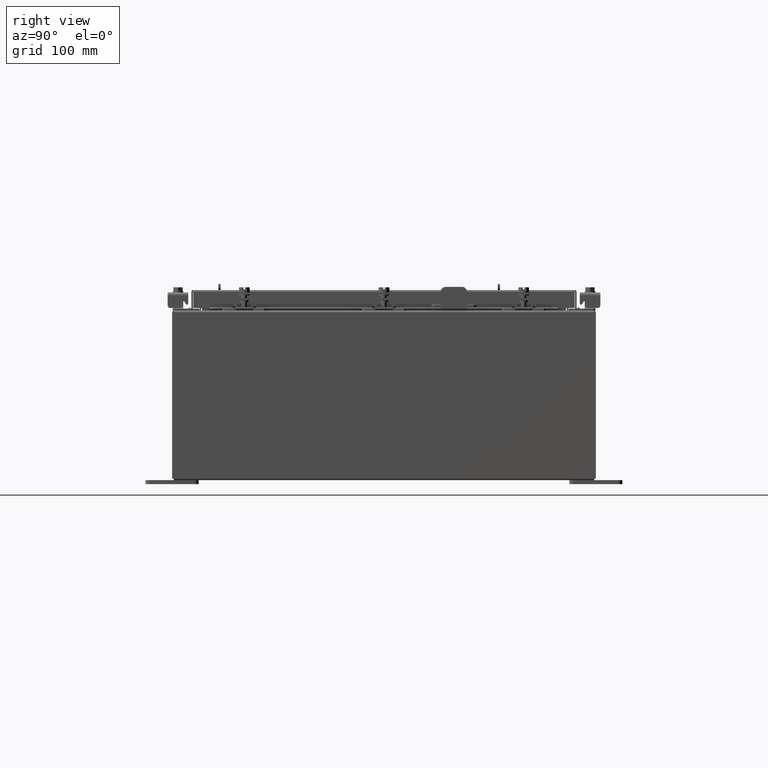
[diagram: clean part render]
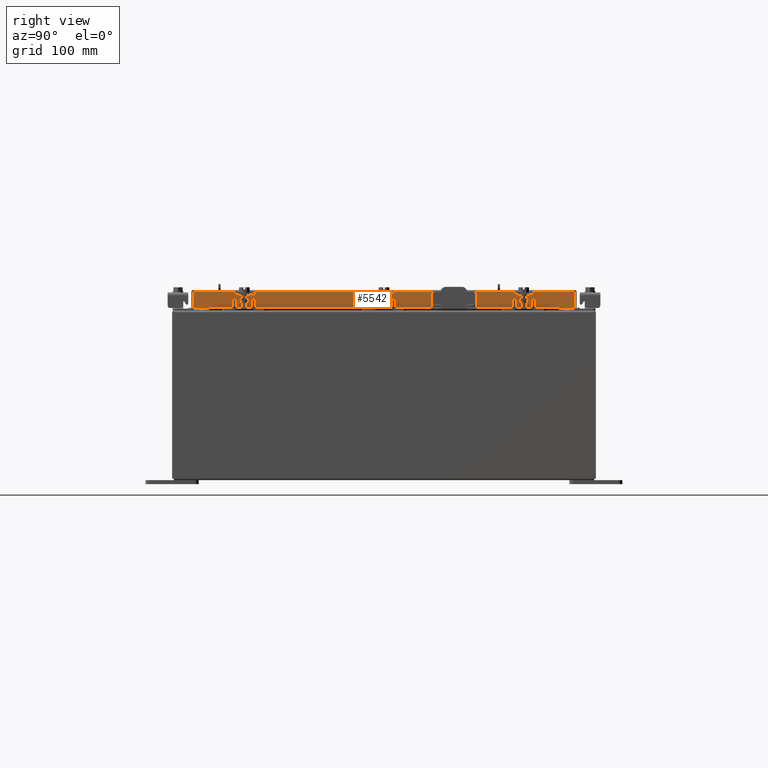
[diagram: same view with one face highlighted and labeled with its STEP entity id]
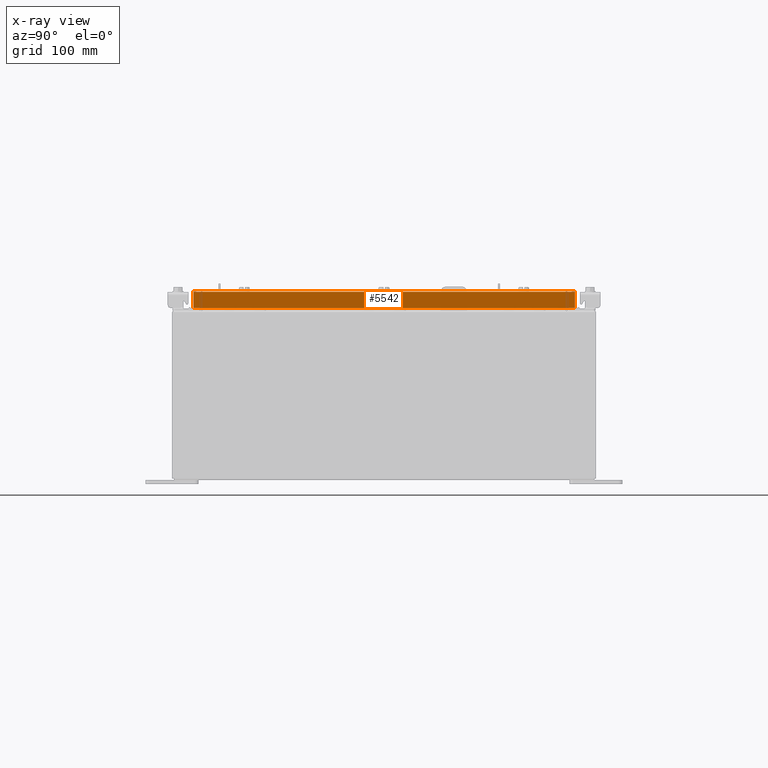
[diagram: x-ray of the same camera — body ghosted, the highlighted face saturated]
A machine part, right view. The second image highlights one B-rep face of the part: STEP entity #5542.
The next image is the same camera in x-ray: the body ghosted, the highlighted face saturated — about 0% of this face is hidden behind the body in this view.
In plain terms, the highlighted planar face has unit normal (1, 0, 0).
Its self-contained STEP definition (entity closure, byte-faithful):
#50 = EDGE_CURVE ( 'NONE', #1566, #5293, #8179, .T. ) ;
#1073 = ORIENTED_EDGE ( 'NONE', *, *, #4732, .F. ) ;
#1126 = CARTESIAN_POINT ( 'NONE',  ( 11.07800000000000500, -9.094000000000003000, -0.8499999999999996400 ) ) ;
#1137 = ORIENTED_EDGE ( 'NONE', *, *, #50, .F. ) ;
#1172 = DIRECTION ( 'NONE',  ( 0.0000000000000000000, -1.000000000000000000, 0.0000000000000000000 ) ) ;
#1210 = PLANE ( 'NONE',  #13946 ) ;
#1529 = CARTESIAN_POINT ( 'NONE',  ( 11.07800000000000500, -9.094000000000003000, -0.8499999999999996400 ) ) ;
#1566 = VERTEX_POINT ( 'NONE', #13218 ) ;
#1958 = CARTESIAN_POINT ( 'NONE',  ( 11.07800000000000500, 9.005157864376274200, -0.8499999999999996400 ) ) ;
#2437 = CARTESIAN_POINT ( 'NONE',  ( 11.07800000000000300, -9.005157864376267100, -0.08770000000000007000 ) ) ;
#2777 = DIRECTION ( 'NONE',  ( -2.818880942772360100E-015, -6.982962677686267500E-015, 1.000000000000000000 ) ) ;
#3056 = EDGE_LOOP ( 'NONE', ( #9159, #1137, #1073, #6450, #19829, #21137 ) ) ;
#3857 = VERTEX_POINT ( 'NONE', #12771 ) ;
#4095 = LINE ( 'NONE', #1529, #12844 ) ;
#4701 = DIRECTION ( 'NONE',  ( 1.000000000000000000, 0.0000000000000000000, 2.818880942772360100E-015 ) ) ;
#4732 = EDGE_CURVE ( 'NONE', #3857, #1566, #21900, .T. ) ;
#5017 = DIRECTION ( 'NONE',  ( 0.0000000000000000000, -1.000000000000000000, 0.0000000000000000000 ) ) ;
#5293 = VERTEX_POINT ( 'NONE', #5672 ) ;
#5542 = ADVANCED_FACE ( 'NONE', ( #16952 ), #1210, .T. ) ;
#5672 = CARTESIAN_POINT ( 'NONE',  ( 11.07800000000000500, -9.005157864376261800, -0.8499999999999996400 ) ) ;
#5835 = VECTOR ( 'NONE', #12301, 39.37007874015748100 ) ;
#6102 = VECTOR ( 'NONE', #2777, 39.37007874015748100 ) ;
#6450 = ORIENTED_EDGE ( 'NONE', *, *, #16742, .F. ) ;
#6562 = CARTESIAN_POINT ( 'NONE',  ( 11.07800000000000300, 0.0000000000000000000, -0.08770000000000007000 ) ) ;
#8102 = CARTESIAN_POINT ( 'NONE',  ( 11.07800000000000300, 8.255157864376267100, -0.8500000000000024200 ) ) ;
#8179 = LINE ( 'NONE', #1126, #12823 ) ;
#8806 = VERTEX_POINT ( 'NONE', #1958 ) ;
#9138 = EDGE_CURVE ( 'NONE', #5293, #9784, #10771, .T. ) ;
#9159 = ORIENTED_EDGE ( 'NONE', *, *, #9138, .F. ) ;
#9740 = CARTESIAN_POINT ( 'NONE',  ( 11.07800000000000300, -9.005157864376267100, -0.07469999999999978000 ) ) ;
#9784 = VERTEX_POINT ( 'NONE', #2437 ) ;
#10577 = CARTESIAN_POINT ( 'NONE',  ( 11.07800000000000300, 9.005157864376268900, 9.437105801365626000E-014 ) ) ;
#10771 = LINE ( 'NONE', #9740, #6102 ) ;
#12301 = DIRECTION ( 'NONE',  ( -2.818880942772360100E-015, -6.982962677686267500E-015, 1.000000000000000000 ) ) ;
#12771 = CARTESIAN_POINT ( 'NONE',  ( 11.07800000000000300, 8.255157864376267100, -0.8500000000000024200 ) ) ;
#12823 = VECTOR ( 'NONE', #21657, 39.37007874015748100 ) ;
#12844 = VECTOR ( 'NONE', #5017, 39.37007874015748100 ) ;
#13218 = CARTESIAN_POINT ( 'NONE',  ( 11.07800000000000300, -8.255157864376263500, -0.8500000000000024200 ) ) ;
#13946 = AXIS2_PLACEMENT_3D ( 'NONE', #15155, #4701, #16887 ) ;
#15144 = LINE ( 'NONE', #10577, #5835 ) ;
#15155 = CARTESIAN_POINT ( 'NONE',  ( 11.07800000000000300, 0.0000000000000000000, 3.148837674004379600E-014 ) ) ;
#16742 = EDGE_CURVE ( 'NONE', #8806, #3857, #4095, .T. ) ;
#16887 = DIRECTION ( 'NONE',  ( 2.818880942772360100E-015, 0.0000000000000000000, -1.000000000000000000 ) ) ;
#16952 = FACE_OUTER_BOUND ( 'NONE', #3056, .T. ) ;
#17026 = DIRECTION ( 'NONE',  ( 0.0000000000000000000, -1.000000000000000000, 0.0000000000000000000 ) ) ;
#17119 = VECTOR ( 'NONE', #17026, 39.37007874015748100 ) ;
#18214 = LINE ( 'NONE', #6562, #17119 ) ;
#18496 = EDGE_CURVE ( 'NONE', #19587, #9784, #18214, .T. ) ;
#19587 = VERTEX_POINT ( 'NONE', #20130 ) ;
#19829 = ORIENTED_EDGE ( 'NONE', *, *, #21531, .T. ) ;
#20130 = CARTESIAN_POINT ( 'NONE',  ( 11.07800000000000300, 9.005157864376270600, -0.08770000000000007000 ) ) ;
#21137 = ORIENTED_EDGE ( 'NONE', *, *, #18496, .T. ) ;
#21337 = VECTOR ( 'NONE', #1172, 39.37007874015748100 ) ;
#21531 = EDGE_CURVE ( 'NONE', #8806, #19587, #15144, .T. ) ;
#21657 = DIRECTION ( 'NONE',  ( 0.0000000000000000000, -1.000000000000000000, 0.0000000000000000000 ) ) ;
#21900 = LINE ( 'NONE', #8102, #21337 ) ;